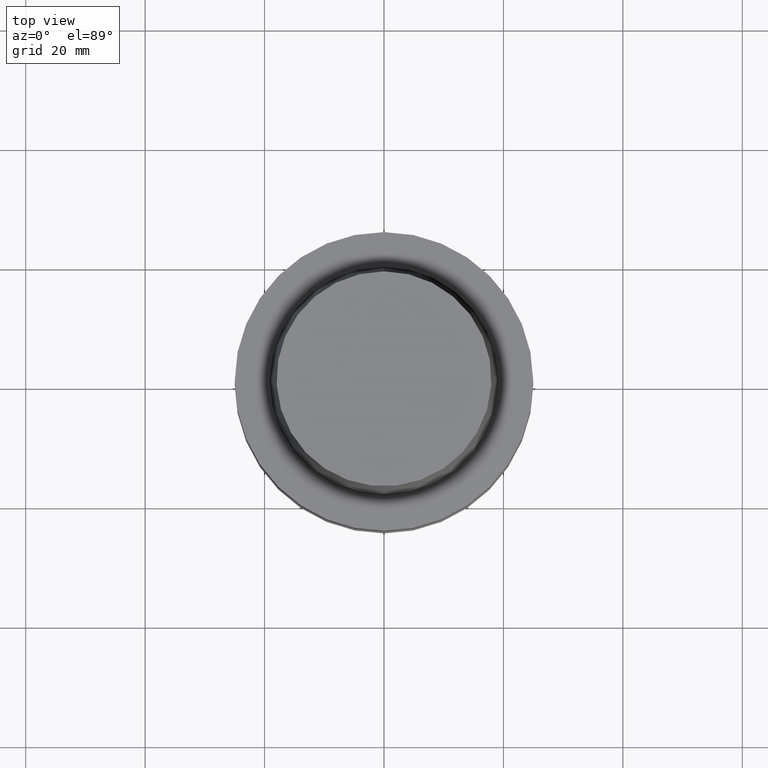
[diagram: clean part render]
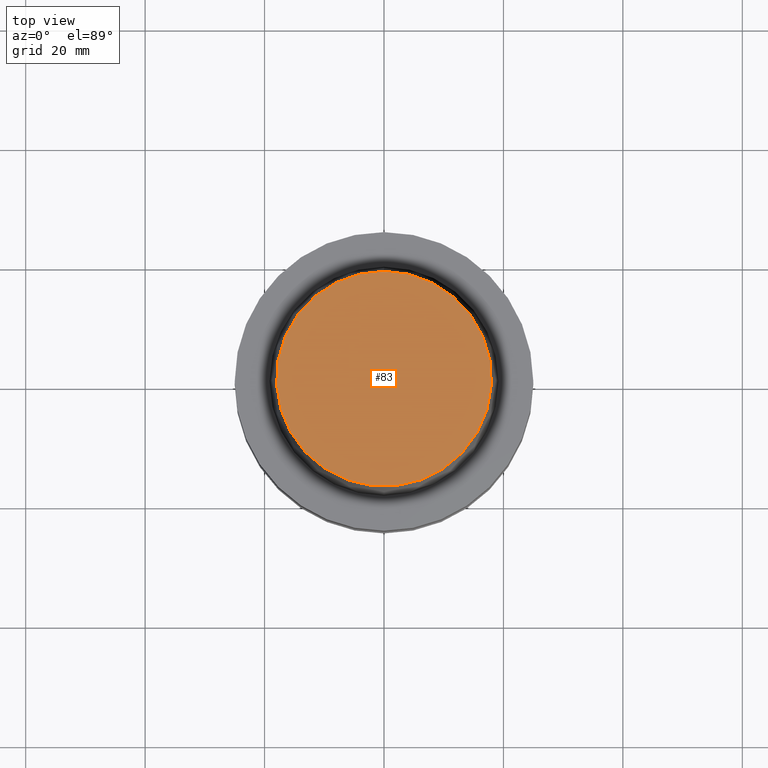
[diagram: same view with one face highlighted and labeled with its STEP entity id]
A machine part, top view. The second image highlights one B-rep face of the part: STEP entity #83.
In plain terms, the highlighted planar face has unit normal (-0, -0, 1).
Its self-contained STEP definition (entity closure, byte-faithful):
#83=ADVANCED_FACE('',(#120),#121,.T.);
#120=FACE_OUTER_BOUND('',#181,.T.);
#121=PLANE('',#182);
#181=EDGE_LOOP('',(#258));
#182=AXIS2_PLACEMENT_3D('',#259,#260,#261);
#258=ORIENTED_EDGE('',*,*,#330,.F.);
#259=CARTESIAN_POINT('',(-1.53080849893419E-015,9.00000000052154,25.0));
#260=DIRECTION('',(-6.12323399573677E-017,-1.22464679914735E-016,1.0));
#261=DIRECTION('',(1.23259516440783E-032,-1.0,-1.22464679914735E-016));
#330=EDGE_CURVE('',#358,#358,#359,.T.);
#358=VERTEX_POINT('',#398);
#359=CIRCLE('',#399,18.0000000010431);
#398=CARTESIAN_POINT('',(-1.53080849893419E-015,18.0000000010431,25.0));
#399=AXIS2_PLACEMENT_3D('',#446,#447,#448);
#446=CARTESIAN_POINT('',(-1.53080849893419E-015,-3.06161699786838E-015,25.0));
#447=DIRECTION('',(6.12323399573677E-017,1.22464679914735E-016,-1.0));
#448=DIRECTION('',(-1.23259516440783E-032,1.0,1.22464679914735E-016));